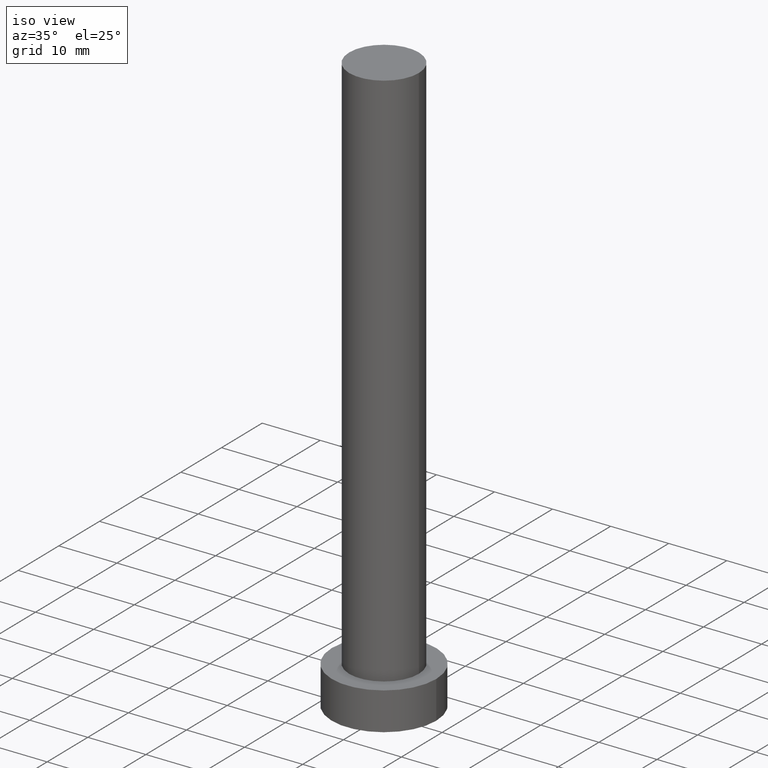
[diagram: clean part render]
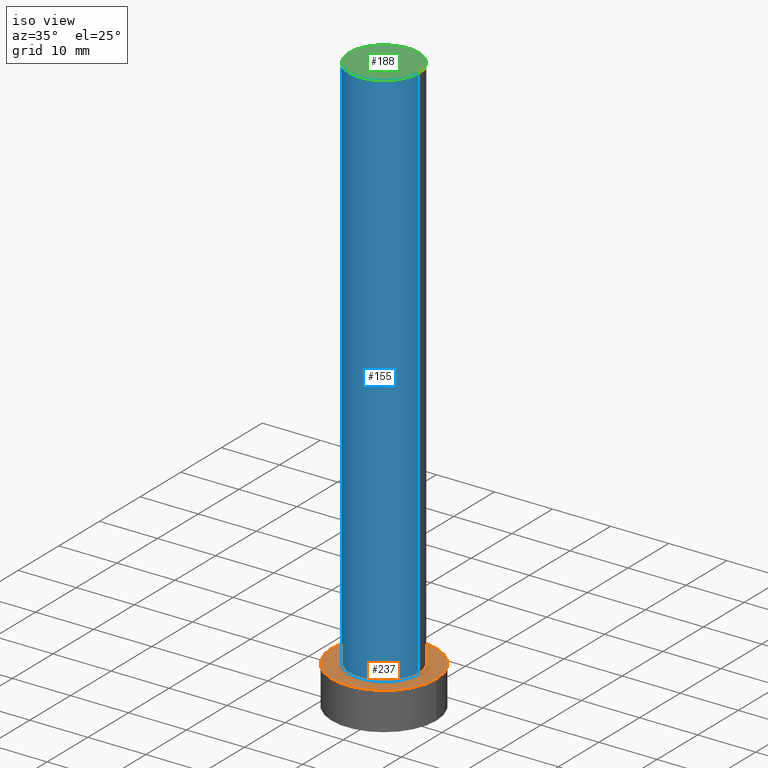
[diagram: same view with three faces highlighted in distinct colors, each labeled with its STEP entity id]
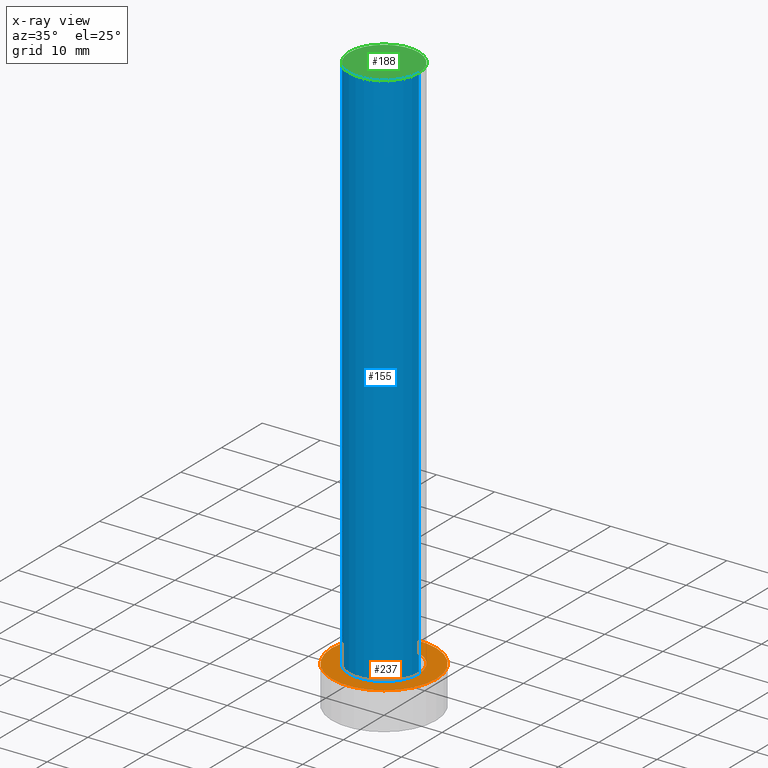
[diagram: x-ray of the same camera — body ghosted, the three highlighted faces saturated]
A machine part, iso view with three faces highlighted in distinct colors.
The next image is the same camera in x-ray (body ghosted, the three faces saturated) — at least one of them is partly hidden behind the body in this view.
Their STEP definitions:

[orange] entity #237 — the highlighted planar face has unit normal (0, 0, 1).
#2 = CARTESIAN_POINT ( 'NONE',  ( 9.000000000000000000, 1.102182119232617517E-15, 6.500000000000000000 ) ) ;
#8 = EDGE_CURVE ( 'NONE', #187, #230, #23, .T. ) ;
#9 = CIRCLE ( 'NONE', #106, 6.000000000000000888 ) ;
#23 = CIRCLE ( 'NONE', #115, 9.000000000000000000 ) ;
#27 = DIRECTION ( 'NONE',  ( 1.000000000000000000, 0.000000000000000000, -0.000000000000000000 ) ) ;
#28 = ORIENTED_EDGE ( 'NONE', *, *, #8, .T. ) ;
#29 = EDGE_CURVE ( 'NONE', #230, #187, #153, .T. ) ;
#34 = DIRECTION ( 'NONE',  ( 0.000000000000000000, 0.000000000000000000, 1.000000000000000000 ) ) ;
#41 = CIRCLE ( 'NONE', #193, 6.000000000000000888 ) ;
#43 = CARTESIAN_POINT ( 'NONE',  ( -6.000000000000000888, 0.000000000000000000, 6.500000000000000000 ) ) ;
#48 = CARTESIAN_POINT ( 'NONE',  ( 0.000000000000000000, 0.000000000000000000, 6.500000000000000000 ) ) ;
#49 = CARTESIAN_POINT ( 'NONE',  ( -9.000000000000000000, 0.000000000000000000, 6.500000000000000000 ) ) ;
#53 = DIRECTION ( 'NONE',  ( 0.000000000000000000, 0.000000000000000000, 1.000000000000000000 ) ) ;
#57 = CARTESIAN_POINT ( 'NONE',  ( 0.000000000000000000, 0.000000000000000000, 6.500000000000000000 ) ) ;
#61 = EDGE_LOOP ( 'NONE', ( #205, #121 ) ) ;
#78 = CARTESIAN_POINT ( 'NONE',  ( 0.000000000000000000, 0.000000000000000000, 6.500000000000000000 ) ) ;
#87 = FACE_OUTER_BOUND ( 'NONE', #228, .T. ) ;
#89 = CARTESIAN_POINT ( 'NONE',  ( 6.000000000000000888, 7.347880794884120722E-16, 6.500000000000000000 ) ) ;
#94 = ORIENTED_EDGE ( 'NONE', *, *, #29, .T. ) ;
#98 = DIRECTION ( 'NONE',  ( 0.000000000000000000, 0.000000000000000000, 1.000000000000000000 ) ) ;
#106 = AXIS2_PLACEMENT_3D ( 'NONE', #78, #151, #152 ) ;
#110 = DIRECTION ( 'NONE',  ( 1.000000000000000000, 0.000000000000000000, 0.000000000000000000 ) ) ;
#115 = AXIS2_PLACEMENT_3D ( 'NONE', #57, #34, #124 ) ;
#117 = FACE_BOUND ( 'NONE', #61, .T. ) ;
#120 = AXIS2_PLACEMENT_3D ( 'NONE', #148, #98, #110 ) ;
#121 = ORIENTED_EDGE ( 'NONE', *, *, #143, .F. ) ;
#124 = DIRECTION ( 'NONE',  ( 1.000000000000000000, 0.000000000000000000, 0.000000000000000000 ) ) ;
#132 = DIRECTION ( 'NONE',  ( 1.000000000000000000, 0.000000000000000000, 0.000000000000000000 ) ) ;
#137 = AXIS2_PLACEMENT_3D ( 'NONE', #144, #53, #27 ) ;
#143 = EDGE_CURVE ( 'NONE', #254, #200, #9, .T. ) ;
#144 = CARTESIAN_POINT ( 'NONE',  ( 0.000000000000000000, 0.000000000000000000, 6.500000000000000000 ) ) ;
#148 = CARTESIAN_POINT ( 'NONE',  ( 0.000000000000000000, 0.000000000000000000, 6.500000000000000000 ) ) ;
#151 = DIRECTION ( 'NONE',  ( 0.000000000000000000, 0.000000000000000000, 1.000000000000000000 ) ) ;
#152 = DIRECTION ( 'NONE',  ( 1.000000000000000000, 0.000000000000000000, 0.000000000000000000 ) ) ;
#153 = CIRCLE ( 'NONE', #120, 9.000000000000000000 ) ;
#182 = EDGE_CURVE ( 'NONE', #200, #254, #41, .T. ) ;
#187 = VERTEX_POINT ( 'NONE', #49 ) ;
#193 = AXIS2_PLACEMENT_3D ( 'NONE', #48, #239, #132 ) ;
#200 = VERTEX_POINT ( 'NONE', #43 ) ;
#205 = ORIENTED_EDGE ( 'NONE', *, *, #182, .F. ) ;
#223 = PLANE ( 'NONE',  #137 ) ;
#228 = EDGE_LOOP ( 'NONE', ( #28, #94 ) ) ;
#230 = VERTEX_POINT ( 'NONE', #2 ) ;
#237 = ADVANCED_FACE ( 'NONE', ( #117, #87 ), #223, .T. ) ;
#239 = DIRECTION ( 'NONE',  ( 0.000000000000000000, 0.000000000000000000, 1.000000000000000000 ) ) ;
#254 = VERTEX_POINT ( 'NONE', #89 ) ;

[blue] entity #155 — the highlighted cylindrical surface (partial cylindrical patch) has radius 6 mm, axis along (-0, -0, -1).
#11 = ORIENTED_EDGE ( 'NONE', *, *, #69, .F. ) ;
#24 = CARTESIAN_POINT ( 'NONE',  ( 0.000000000000000000, 0.000000000000000000, 100.0000000000000000 ) ) ;
#35 = AXIS2_PLACEMENT_3D ( 'NONE', #215, #195, #213 ) ;
#37 = DIRECTION ( 'NONE',  ( -0.000000000000000000, -0.000000000000000000, -1.000000000000000000 ) ) ;
#41 = CIRCLE ( 'NONE', #193, 6.000000000000000888 ) ;
#43 = CARTESIAN_POINT ( 'NONE',  ( -6.000000000000000888, 0.000000000000000000, 6.500000000000000000 ) ) ;
#46 = CARTESIAN_POINT ( 'NONE',  ( -6.000000000000000888, 0.000000000000000000, 100.0000000000000000 ) ) ;
#47 = CIRCLE ( 'NONE', #35, 6.000000000000000888 ) ;
#48 = CARTESIAN_POINT ( 'NONE',  ( 0.000000000000000000, 0.000000000000000000, 6.500000000000000000 ) ) ;
#52 = VECTOR ( 'NONE', #101, 1000.000000000000000 ) ;
#62 = EDGE_LOOP ( 'NONE', ( #11, #232, #201, #161 ) ) ;
#67 = CARTESIAN_POINT ( 'NONE',  ( 6.000000000000000888, 7.347880794884120722E-16, 100.0000000000000000 ) ) ;
#69 = EDGE_CURVE ( 'NONE', #159, #254, #210, .T. ) ;
#81 = CYLINDRICAL_SURFACE ( 'NONE', #190, 6.000000000000000888 ) ;
#89 = CARTESIAN_POINT ( 'NONE',  ( 6.000000000000000888, 7.347880794884120722E-16, 6.500000000000000000 ) ) ;
#101 = DIRECTION ( 'NONE',  ( -0.000000000000000000, -0.000000000000000000, -1.000000000000000000 ) ) ;
#132 = DIRECTION ( 'NONE',  ( 1.000000000000000000, 0.000000000000000000, 0.000000000000000000 ) ) ;
#135 = VECTOR ( 'NONE', #37, 1000.000000000000000 ) ;
#136 = LINE ( 'NONE', #46, #52 ) ;
#139 = VERTEX_POINT ( 'NONE', #164 ) ;
#155 = ADVANCED_FACE ( 'NONE', ( #236 ), #81, .T. ) ;
#159 = VERTEX_POINT ( 'NONE', #67 ) ;
#161 = ORIENTED_EDGE ( 'NONE', *, *, #182, .T. ) ;
#164 = CARTESIAN_POINT ( 'NONE',  ( -6.000000000000000888, 0.000000000000000000, 100.0000000000000000 ) ) ;
#170 = DIRECTION ( 'NONE',  ( -0.000000000000000000, -0.000000000000000000, -1.000000000000000000 ) ) ;
#182 = EDGE_CURVE ( 'NONE', #200, #254, #41, .T. ) ;
#190 = AXIS2_PLACEMENT_3D ( 'NONE', #24, #170, #216 ) ;
#191 = EDGE_CURVE ( 'NONE', #139, #159, #47, .T. ) ;
#193 = AXIS2_PLACEMENT_3D ( 'NONE', #48, #239, #132 ) ;
#195 = DIRECTION ( 'NONE',  ( 0.000000000000000000, 0.000000000000000000, 1.000000000000000000 ) ) ;
#200 = VERTEX_POINT ( 'NONE', #43 ) ;
#201 = ORIENTED_EDGE ( 'NONE', *, *, #222, .T. ) ;
#209 = CARTESIAN_POINT ( 'NONE',  ( 6.000000000000000888, 7.347880794884120722E-16, 100.0000000000000000 ) ) ;
#210 = LINE ( 'NONE', #209, #135 ) ;
#213 = DIRECTION ( 'NONE',  ( 1.000000000000000000, 0.000000000000000000, 0.000000000000000000 ) ) ;
#215 = CARTESIAN_POINT ( 'NONE',  ( 0.000000000000000000, 0.000000000000000000, 100.0000000000000000 ) ) ;
#216 = DIRECTION ( 'NONE',  ( -1.000000000000000000, 0.000000000000000000, 0.000000000000000000 ) ) ;
#222 = EDGE_CURVE ( 'NONE', #139, #200, #136, .T. ) ;
#232 = ORIENTED_EDGE ( 'NONE', *, *, #191, .F. ) ;
#236 = FACE_OUTER_BOUND ( 'NONE', #62, .T. ) ;
#239 = DIRECTION ( 'NONE',  ( 0.000000000000000000, 0.000000000000000000, 1.000000000000000000 ) ) ;
#254 = VERTEX_POINT ( 'NONE', #89 ) ;

[green] entity #188 — the highlighted planar face has unit normal (0, 0, 1).
#5 = CARTESIAN_POINT ( 'NONE',  ( 0.000000000000000000, 0.000000000000000000, 100.0000000000000000 ) ) ;
#25 = ORIENTED_EDGE ( 'NONE', *, *, #251, .T. ) ;
#35 = AXIS2_PLACEMENT_3D ( 'NONE', #215, #195, #213 ) ;
#47 = CIRCLE ( 'NONE', #35, 6.000000000000000888 ) ;
#66 = PLANE ( 'NONE',  #88 ) ;
#67 = CARTESIAN_POINT ( 'NONE',  ( 6.000000000000000888, 7.347880794884120722E-16, 100.0000000000000000 ) ) ;
#68 = DIRECTION ( 'NONE',  ( 0.000000000000000000, 0.000000000000000000, 1.000000000000000000 ) ) ;
#85 = CIRCLE ( 'NONE', #166, 6.000000000000000888 ) ;
#88 = AXIS2_PLACEMENT_3D ( 'NONE', #154, #68, #134 ) ;
#134 = DIRECTION ( 'NONE',  ( 1.000000000000000000, 0.000000000000000000, -0.000000000000000000 ) ) ;
#138 = DIRECTION ( 'NONE',  ( 1.000000000000000000, 0.000000000000000000, 0.000000000000000000 ) ) ;
#139 = VERTEX_POINT ( 'NONE', #164 ) ;
#154 = CARTESIAN_POINT ( 'NONE',  ( 0.000000000000000000, 0.000000000000000000, 100.0000000000000000 ) ) ;
#158 = DIRECTION ( 'NONE',  ( 0.000000000000000000, 0.000000000000000000, 1.000000000000000000 ) ) ;
#159 = VERTEX_POINT ( 'NONE', #67 ) ;
#164 = CARTESIAN_POINT ( 'NONE',  ( -6.000000000000000888, 0.000000000000000000, 100.0000000000000000 ) ) ;
#166 = AXIS2_PLACEMENT_3D ( 'NONE', #5, #158, #138 ) ;
#181 = ORIENTED_EDGE ( 'NONE', *, *, #191, .T. ) ;
#188 = ADVANCED_FACE ( 'NONE', ( #212 ), #66, .T. ) ;
#191 = EDGE_CURVE ( 'NONE', #139, #159, #47, .T. ) ;
#195 = DIRECTION ( 'NONE',  ( 0.000000000000000000, 0.000000000000000000, 1.000000000000000000 ) ) ;
#212 = FACE_OUTER_BOUND ( 'NONE', #233, .T. ) ;
#213 = DIRECTION ( 'NONE',  ( 1.000000000000000000, 0.000000000000000000, 0.000000000000000000 ) ) ;
#215 = CARTESIAN_POINT ( 'NONE',  ( 0.000000000000000000, 0.000000000000000000, 100.0000000000000000 ) ) ;
#233 = EDGE_LOOP ( 'NONE', ( #181, #25 ) ) ;
#251 = EDGE_CURVE ( 'NONE', #159, #139, #85, .T. ) ;